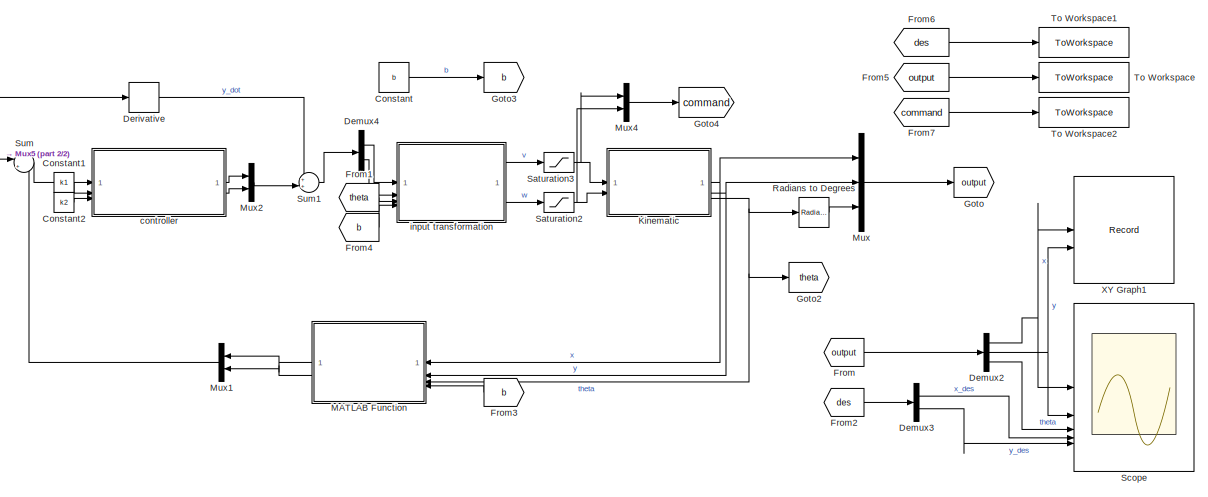
[diagram: root canvas - part 1/2, most of the canvas]
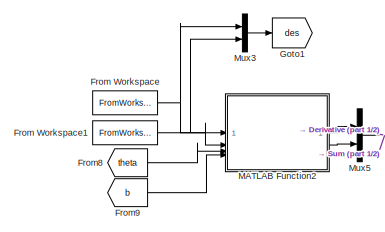
[diagram: root canvas - part 2/2, middle left region]
MODEL slx_18bad47b90e8
KIND model
CONFIG AbsTol = auto
CONFIG EnableMultiTasking = off
CONFIG FixedStep = step_size
CONFIG MaxStep = auto
CONFIG MinStep = auto
CONFIG RelTol = 1e-3
CONFIG SampleTimeConstraint = Unconstrained
CONFIG SolverName = FixedStepAuto
CONFIG StartTime = 0.0
CONFIG StopTime = 10.0
BLOCK [Constant] Constant
  Value = b
BLOCK [Constant] Constant1
  Value = k1
BLOCK [Constant] Constant2
  Value = k2
BLOCK [Demux] Demux2
  Outputs = 3
BLOCK [Demux] Demux3
  Outputs = 2
BLOCK [Demux] Demux4
  Outputs = 2
BLOCK [Derivative] Derivative
BLOCK [From] From
  GotoTag = output
BLOCK [FromWorkspace] From Workspace
  VariableName = x_sim
BLOCK [FromWorkspace] From Workspace1
  VariableName = y_sim
BLOCK [From] From1
  GotoTag = theta
BLOCK [From] From2
  GotoTag = des
BLOCK [From] From3
  GotoTag = b
BLOCK [From] From4
  GotoTag = b
BLOCK [From] From5
  GotoTag = output
BLOCK [From] From6
  GotoTag = des
BLOCK [From] From7
  GotoTag = command
BLOCK [From] From8
  GotoTag = theta
BLOCK [From] From9
  GotoTag = b
BLOCK [Goto] Goto
  GotoTag = output
BLOCK [Goto] Goto1
  GotoTag = des
BLOCK [Goto] Goto2
  GotoTag = theta
BLOCK [Goto] Goto3
  GotoTag = b
BLOCK [Goto] Goto4
  GotoTag = command
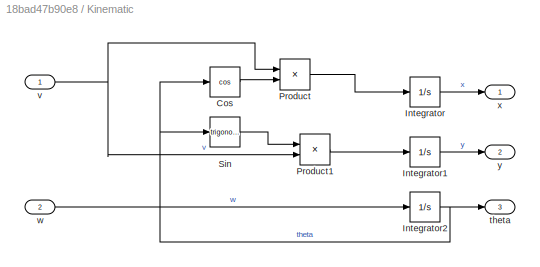
BLOCK [SubSystem] Kinematic
BLOCK [Trigonometry] Kinematic/Cos
  Operator = cos
BLOCK [Integrator] Kinematic/Integrator
  InitialCondition = x_i
BLOCK [Integrator] Kinematic/Integrator1
  InitialCondition = y_i
BLOCK [Integrator] Kinematic/Integrator2
  InitialCondition = theta_i
BLOCK [Product] Kinematic/Product
BLOCK [Product] Kinematic/Product1
BLOCK [Trigonometry] Kinematic/Sin
BLOCK [Outport] Kinematic/theta
  Port = 3
BLOCK [Inport] Kinematic/v
BLOCK [Inport] Kinematic/w
  Port = 2
BLOCK [Outport] Kinematic/x
BLOCK [Outport] Kinematic/y
  Port = 2
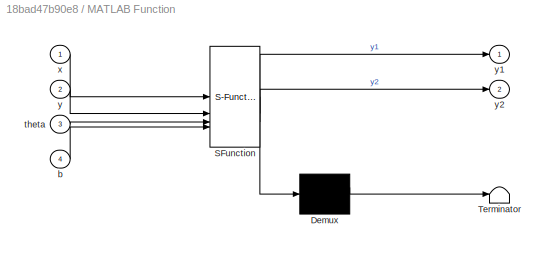
BLOCK [SubSystem] MATLAB Function
  ErrorFcn = Stateflow.Translate.translate
  LibrarySourceBlock = simulink/User-Defined\nFunctions/MATLAB Function
  PermitHierarchicalResolution = ExplicitOnly
  SFBlockType = MATLAB Function
  TreatAsAtomicUnit = on
BLOCK [Demux] MATLAB Function/ Demux 
  Outputs = 1
BLOCK [S-Function] MATLAB Function/ SFunction 
  EnableBusSupport = on
  FunctionName = sf_sfun
  PortCounts = [4 3]
  SFcnIsStateOwnerBlock = off
  SFunctionDeploymentMode = off
  Tag = Stateflow S-Function 3
BLOCK [Terminator] MATLAB Function/ Terminator 
BLOCK [Inport] MATLAB Function/b
  Port = 4
BLOCK [Inport] MATLAB Function/theta
  Port = 3
BLOCK [Inport] MATLAB Function/x
BLOCK [Inport] MATLAB Function/y
  Port = 2
BLOCK [Outport] MATLAB Function/y1
BLOCK [Outport] MATLAB Function/y2
  Port = 2
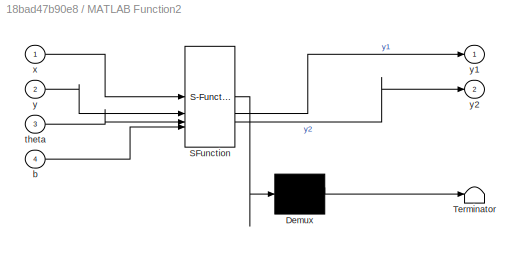
BLOCK [SubSystem] MATLAB Function2
  ErrorFcn = Stateflow.Translate.translate
  PermitHierarchicalResolution = ExplicitOnly
  SFBlockType = MATLAB Function
  TreatAsAtomicUnit = on
BLOCK [Demux] MATLAB Function2/ Demux 
  Outputs = 1
BLOCK [S-Function] MATLAB Function2/ SFunction 
  EnableBusSupport = on
  FunctionName = sf_sfun
  PortCounts = [4 3]
  SFcnIsStateOwnerBlock = off
  SFunctionDeploymentMode = off
  Tag = Stateflow S-Function 1
BLOCK [Terminator] MATLAB Function2/ Terminator 
BLOCK [Inport] MATLAB Function2/b
  Port = 4
BLOCK [Inport] MATLAB Function2/theta
  Port = 3
BLOCK [Inport] MATLAB Function2/x
BLOCK [Inport] MATLAB Function2/y
  Port = 2
BLOCK [Outport] MATLAB Function2/y1
BLOCK [Outport] MATLAB Function2/y2
  Port = 2
BLOCK [Mux] Mux
  DisplayOption = bar
  Inputs = 3
BLOCK [Mux] Mux1
  DisplayOption = bar
  Inputs = 2
BLOCK [Mux] Mux2
  DisplayOption = bar
  Inputs = 2
BLOCK [Mux] Mux3
  DisplayOption = bar
  Inputs = 2
BLOCK [Mux] Mux4
  DisplayOption = bar
  Inputs = 2
BLOCK [Mux] Mux5
  DisplayOption = bar
  Inputs = 2
BLOCK [Reference] Radians to Degrees  REF=simulink_extras/Transformations/Radians
to Degrees
  SourceBlock = simulink_extras/Transformations/Radians\nto Degrees
  SourceType = RadiansToDegrees
BLOCK [Saturate] Saturation2
  LowerLimit = -2
  UpperLimit = 2
BLOCK [Saturate] Saturation3
  LowerLimit = -2
  UpperLimit = 2
BLOCK [Scope] Scope
  Floating = off
  NumInputPorts = 5
  ScopeSpecificationString = Simulink.scopes.TimeScopeBlockCfg('CurrentConfiguration', extmgr.ConfigurationSet(extmgr.Configuration('Core','General UI',true),extmgr.Configuration('Core','Source UI',true),extmgr.Configuration('Sources','WiredSimulink',true),extmgr.Configuration('Visuals','Time Domain',true,'SerializedDisplays',{struct('MinYLimReal','-0.62323','MaxYLimReal','5.60904','YLabelReal','','MinYLimMag','0.00000','MaxY...<+4773ch>
BLOCK [Sum] Sum
  Inputs = |+-
BLOCK [Sum] Sum1
  Inputs = ++|
BLOCK [ToWorkspace] To Workspace
  FixptAsFi = on
  MaxDataPoints = inf
  SampleTime = -1
  SaveFormat = Structure With Time
  VariableName = output
BLOCK [ToWorkspace] To Workspace1
  FixptAsFi = on
  MaxDataPoints = inf
  SampleTime = -1
  SaveFormat = Structure With Time
  VariableName = reference
BLOCK [ToWorkspace] To Workspace2
  FixptAsFi = on
  MaxDataPoints = inf
  SampleTime = -1
  SaveFormat = Structure With Time
  VariableName = command
BLOCK [Record] XY Graph1
  CompatibilityTag = XY
  FileSettingsInternal = {"entries":[{"content":{"excelSettings":{"content":{},"type":"Streamout.ExcelSettings"}},"type":"Streamout.FileSettingStorage","uuid":"0d4e8405-cc65-47cc-850f-a12000fc69a0"}],"packageUris":["http://schema.mathworks.com/mf0/streamout_blocks/R2020a"],"version":"1.0"}
  Layout = [1 1]
  SignalsInternal = {"entries":[{"content":{"signals":[{"content":{"blockPath":["Output_Feedback_MATLAB/XY Graph1"],"channel":[],"dimensions":[1],"domain":"Output_Feedback_MATLAB/XY Graph1","lineColor":"#a2142f","plots":[1],"port":1,"sid":[""],"signalID":860,"signalName":"x"},"type":"RecordBlkView.Signal","uuid":"881d64ae-a7b1-402c-b34c-8b1dce287662"},{"content":{"blockPath":["Output_Feedback_MATLAB/XY Graph1"],"chan...<+409ch>
  VisualizationBindings = {"xyplotplugin":{"info":[{"series":[{"bindingParametersList":[{"parameter":"X-Axis","signalID":860,"signalName":"x"},{"parameter":"Y-Axis","signalID":864,"signalName":"y"}],"seriesID":40151}],"subplotID":1}]}}
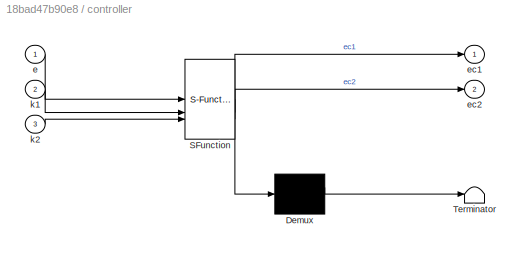
BLOCK [SubSystem] controller
  ErrorFcn = Stateflow.Translate.translate
  LibrarySourceBlock = simulink/User-Defined\nFunctions/MATLAB Function
  PermitHierarchicalResolution = ExplicitOnly
  SFBlockType = MATLAB Function
  TreatAsAtomicUnit = on
BLOCK [Demux] controller/ Demux 
  Outputs = 1
BLOCK [S-Function] controller/ SFunction 
  EnableBusSupport = on
  FunctionName = sf_sfun
  PortCounts = [3 3]
  SFcnIsStateOwnerBlock = off
  SFunctionDeploymentMode = off
  Tag = Stateflow S-Function 4
BLOCK [Terminator] controller/ Terminator 
BLOCK [Inport] controller/e
BLOCK [Outport] controller/ec1
BLOCK [Outport] controller/ec2
  Port = 2
BLOCK [Inport] controller/k1
  Port = 2
BLOCK [Inport] controller/k2
  Port = 3
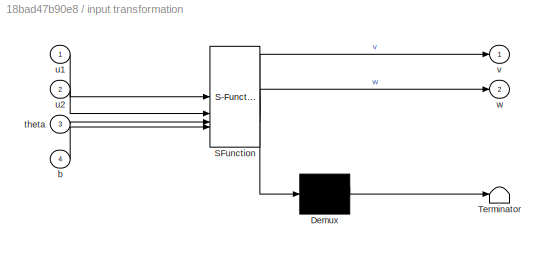
BLOCK [SubSystem] input transformation
  ErrorFcn = Stateflow.Translate.translate
  LibrarySourceBlock = simulink/User-Defined\nFunctions/MATLAB Function
  PermitHierarchicalResolution = ExplicitOnly
  SFBlockType = MATLAB Function
  TreatAsAtomicUnit = on
BLOCK [Demux] input transformation/ Demux 
  Outputs = 1
BLOCK [S-Function] input transformation/ SFunction 
  EnableBusSupport = on
  FunctionName = sf_sfun
  PortCounts = [4 3]
  SFcnIsStateOwnerBlock = off
  SFunctionDeploymentMode = off
  Tag = Stateflow S-Function 2
BLOCK [Terminator] input transformation/ Terminator 
BLOCK [Inport] input transformation/b
  Port = 4
BLOCK [Inport] input transformation/theta
  Port = 3
BLOCK [Inport] input transformation/u1
BLOCK [Inport] input transformation/u2
  Port = 2
BLOCK [Outport] input transformation/v
BLOCK [Outport] input transformation/w
  Port = 2
LINE Constant1:1 -> controller:2
LINE Constant2:1 -> controller:3
LINE Constant:1 -> Goto3:1
NET Demux2:1 -> Scope:1, XY Graph1:1
NET Demux2:2 -> Scope:2, XY Graph1:2
LINE Demux2:3 -> Scope:3
LINE Demux3:1 -> Scope:4
LINE Demux3:2 -> Scope:5
LINE Demux4:1 -> input transformation:1
LINE Demux4:2 -> input transformation:2
LINE Derivative:1 -> Sum1:1
NET From Workspace1:1 -> MATLAB Function2:2, Mux3:2
NET From Workspace:1 -> MATLAB Function2:1, Mux3:1
LINE From1:1 -> input transformation:3
LINE From2:1 -> Demux3:1
LINE From3:1 -> MATLAB Function:4
LINE From4:1 -> input transformation:4
LINE From5:1 -> To Workspace:1
LINE From6:1 -> To Workspace1:1
LINE From7:1 -> To Workspace2:1
LINE From8:1 -> MATLAB Function2:3
LINE From9:1 -> MATLAB Function2:4
LINE From:1 -> Demux2:1
LINE Kinematic/Cos:1 -> Kinematic/Product:2
LINE Kinematic/Integrator1:1 -> Kinematic/y:1
NET Kinematic/Integrator2:1 -> Kinematic/Cos:1, Kinematic/Sin:1, Kinematic/theta:1
LINE Kinematic/Integrator:1 -> Kinematic/x:1
LINE Kinematic/Product1:1 -> Kinematic/Integrator1:1
LINE Kinematic/Product:1 -> Kinematic/Integrator:1
LINE Kinematic/Sin:1 -> Kinematic/Product1:1
NET Kinematic/v:1 -> Kinematic/Product1:2, Kinematic/Product:1
LINE Kinematic/w:1 -> Kinematic/Integrator2:1
NET Kinematic:1 -> MATLAB Function:1, Mux:1
NET Kinematic:2 -> MATLAB Function:2, Mux:2
NET Kinematic:3 -> Goto2:1, MATLAB Function:3, Radians to Degrees:1
LINE MATLAB Function2:1 -> Mux5:1
LINE MATLAB Function2:2 -> Mux5:2
LINE MATLAB Function:1 -> Mux1:1
LINE MATLAB Function:2 -> Mux1:2
LINE Mux1:1 -> Sum:2
LINE Mux2:1 -> Sum1:2
LINE Mux3:1 -> Goto1:1
LINE Mux4:1 -> Goto4:1
NET Mux5:1 -> Derivative:1, Sum:1
LINE Mux:1 -> Goto:1
LINE Radians to Degrees:1 -> Mux:3
NET Saturation2:1 -> Kinematic:2, Mux4:2
NET Saturation3:1 -> Kinematic:1, Mux4:1
LINE Sum1:1 -> Demux4:1
LINE Sum:1 -> controller:1
LINE controller:1 -> Mux2:1
LINE controller:2 -> Mux2:2
LINE input transformation:1 -> Saturation3:1
LINE input transformation:2 -> Saturation2:1
note: NET lines group one-source signal fan-out (src -> all destinations, sorted); 1:1 wires keep LINE
CHART MATLAB Function2 states=1 transitions=1
  STATE_LABEL 'eML_blk_kernel()'
  STATE_LABEL 'SCRIPT:\nfunction [y1,y2] = p2y(x,y,theta,b)\n\ny1 = x + b*cos(theta);\ny2 = y + b*sin(theta);'
CHART input transformation states=1 transitions=1
  STATE_LABEL 'eML_blk_kernel()'
  STATE_LABEL 'SCRIPT:\nfunction [v,w] = fcn(u1, u2, theta, b)\n\n    R = [cos(theta),      sin(theta);\n         -sin(theta)/b, cos(theta)/b];\n    \n    v = cos(theta)*u1 + sin(theta)*u2;\n    w = (-sin(theta)/b)*u1 + (cos(theta)/b)*u2;\n\nend\n'
CHART MATLAB Function states=1 transitions=1
  STATE_LABEL 'eML_blk_kernel()'
  STATE_LABEL 'SCRIPT:\nfunction [y1,y2] = p2y(x,y,theta,b)\n\n    y1 = x + b*cos(theta);\n    y2 = y + b*sin(theta);\n    \nend\n'
CHART controller states=1 transitions=1
  STATE_LABEL 'eML_blk_kernel()'
  STATE_LABEL 'SCRIPT:\nfunction [ec1, ec2] = fcn(e, k1, k2)\n    \n    ec1 = k1*(e(1));\n    ec2 = k2*(e(2));\n    \nend\n'
CHART  states=0 transitions=0
CHART  states=0 transitions=0
CHART  states=0 transitions=0
CHART  states=0 transitions=0
